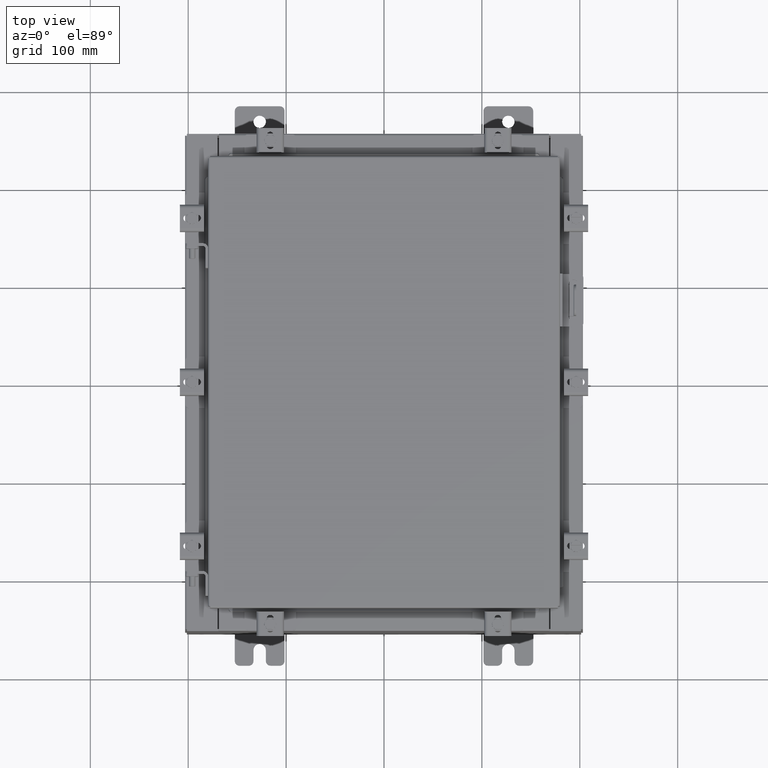
[diagram: clean part render]
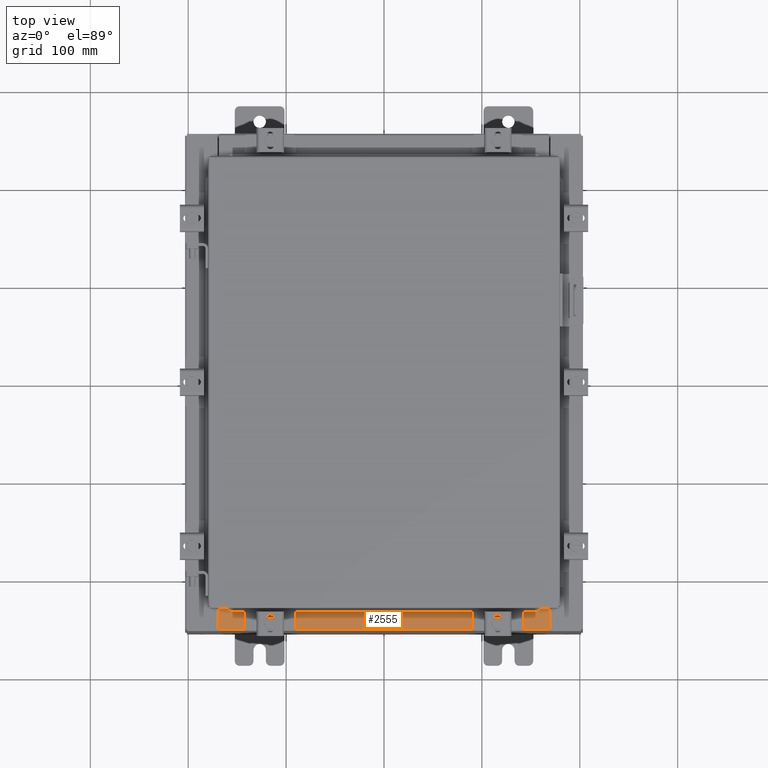
[diagram: same view with one face highlighted and labeled with its STEP entity id]
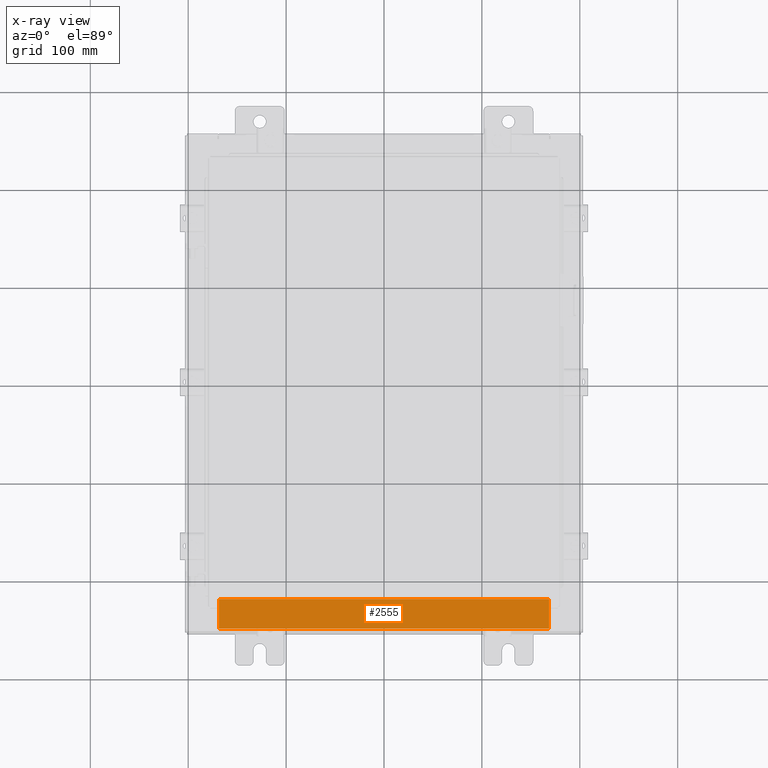
[diagram: x-ray of the same camera — body ghosted, the highlighted face saturated]
A machine part, top view. The second image highlights one B-rep face of the part: STEP entity #2555.
The next image is the same camera in x-ray: the body ghosted, the highlighted face saturated — about 0% of this face is hidden behind the body in this view.
In plain terms, the highlighted planar face has unit normal (-0, -0, 1).
Its self-contained STEP definition (entity closure, byte-faithful):
#283 = ORIENTED_EDGE ( 'NONE', *, *, #18856, .F. ) ;
#509 = VECTOR ( 'NONE', #12007, 39.37007874015748100 ) ;
#1061 = LINE ( 'NONE', #10246, #509 ) ;
#1716 = ORIENTED_EDGE ( 'NONE', *, *, #9685, .F. ) ;
#2045 = CARTESIAN_POINT ( 'NONE',  ( 0.0000000000000000000, 1.425992975200418200E-014, 3.999999999999999600 ) ) ;
#2098 = VECTOR ( 'NONE', #15898, 39.37007874015748100 ) ;
#2264 = CARTESIAN_POINT ( 'NONE',  ( -6.637200000000000000, -1.287299999999999200, 4.000000000000003600 ) ) ;
#2435 = CARTESIAN_POINT ( 'NONE',  ( -6.637200000000000000, -0.07469999999999973900, 3.999999999999999600 ) ) ;
#2555 = ADVANCED_FACE ( 'NONE', ( #14940 ), #7360, .T. ) ;
#2641 = EDGE_LOOP ( 'NONE', ( #18146, #1716, #283, #4664 ) ) ;
#4664 = ORIENTED_EDGE ( 'NONE', *, *, #17839, .T. ) ;
#7285 = CARTESIAN_POINT ( 'NONE',  ( 6.637200000000000900, -1.287299999999999900, 4.000000000000003600 ) ) ;
#7301 = CARTESIAN_POINT ( 'NONE',  ( 6.637200000000000000, -1.300299999999999800, 4.000000000000003600 ) ) ;
#7360 = PLANE ( 'NONE',  #17628 ) ;
#8152 = VERTEX_POINT ( 'NONE', #19062 ) ;
#9088 = DIRECTION ( 'NONE',  ( 0.0000000000000000000, 3.566381192773190000E-015, 1.000000000000000000 ) ) ;
#9685 = EDGE_CURVE ( 'NONE', #12823, #11793, #15442, .T. ) ;
#10246 = CARTESIAN_POINT ( 'NONE',  ( 0.0000000000000000000, -0.08770000000000026400, 4.000000000000000000 ) ) ;
#10267 = LINE ( 'NONE', #7301, #18976 ) ;
#11793 = VERTEX_POINT ( 'NONE', #2264 ) ;
#12007 = DIRECTION ( 'NONE',  ( -1.000000000000000000, 0.0000000000000000000, 0.0000000000000000000 ) ) ;
#12271 = EDGE_CURVE ( 'NONE', #11793, #8152, #17277, .T. ) ;
#12503 = DIRECTION ( 'NONE',  ( -0.0000000000000000000, -1.000000000000000000, 3.566381192773190000E-015 ) ) ;
#12647 = VECTOR ( 'NONE', #12854, 39.37007874015748100 ) ;
#12823 = VERTEX_POINT ( 'NONE', #21274 ) ;
#12854 = DIRECTION ( 'NONE',  ( -0.0000000000000000000, 1.000000000000000000, -3.566381192773190000E-015 ) ) ;
#14940 = FACE_OUTER_BOUND ( 'NONE', #2641, .T. ) ;
#15442 = LINE ( 'NONE', #7285, #2098 ) ;
#15537 = VERTEX_POINT ( 'NONE', #21577 ) ;
#15898 = DIRECTION ( 'NONE',  ( -1.000000000000000000, 0.0000000000000000000, 0.0000000000000000000 ) ) ;
#17277 = LINE ( 'NONE', #2435, #12647 ) ;
#17628 = AXIS2_PLACEMENT_3D ( 'NONE', #2045, #9088, #21227 ) ;
#17839 = EDGE_CURVE ( 'NONE', #15537, #8152, #1061, .T. ) ;
#18146 = ORIENTED_EDGE ( 'NONE', *, *, #12271, .F. ) ;
#18856 = EDGE_CURVE ( 'NONE', #15537, #12823, #10267, .T. ) ;
#18976 = VECTOR ( 'NONE', #12503, 39.37007874015748100 ) ;
#19062 = CARTESIAN_POINT ( 'NONE',  ( -6.637200000000000000, -0.08770000000000026400, 3.999999999999999600 ) ) ;
#21227 = DIRECTION ( 'NONE',  ( 0.0000000000000000000, -1.000000000000000000, 3.566381192773190000E-015 ) ) ;
#21274 = CARTESIAN_POINT ( 'NONE',  ( 6.637200000000000000, -1.287299999999999900, 4.000000000000003600 ) ) ;
#21577 = CARTESIAN_POINT ( 'NONE',  ( 6.637199999999999100, -0.08769999999999993100, 3.999999999999999600 ) ) ;